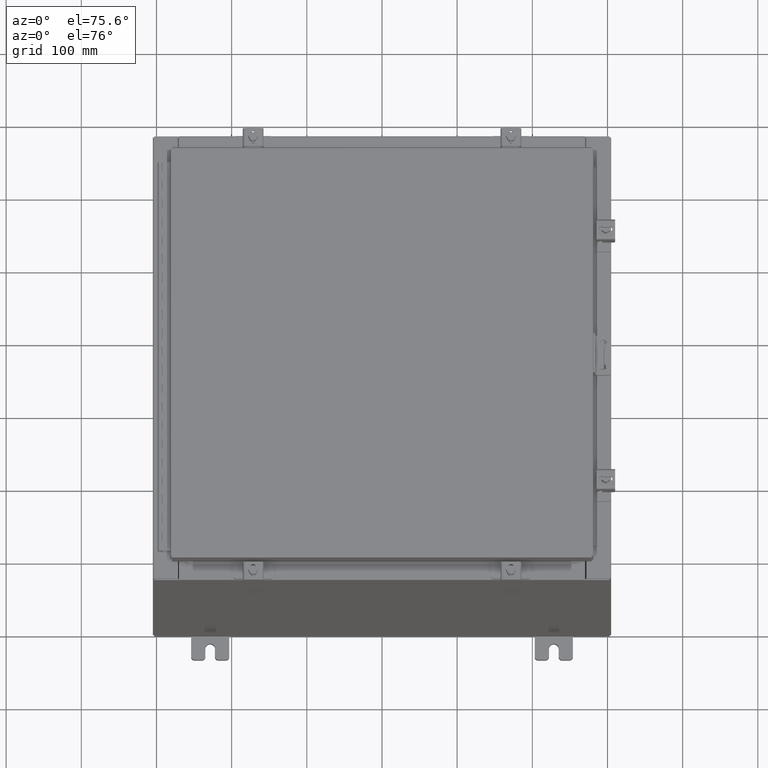
[diagram: clean part render]
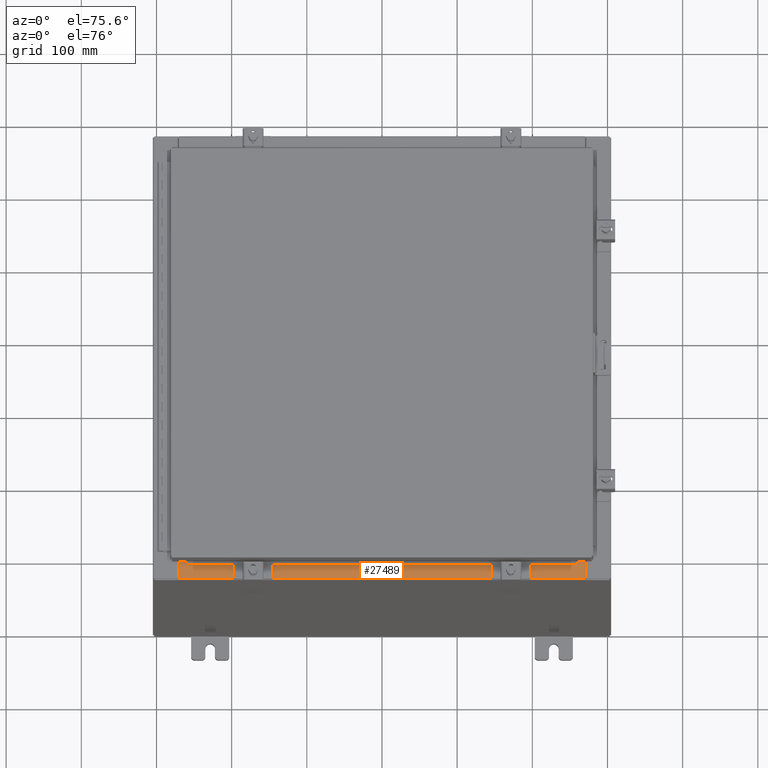
[diagram: same view with one face highlighted and labeled with its STEP entity id]
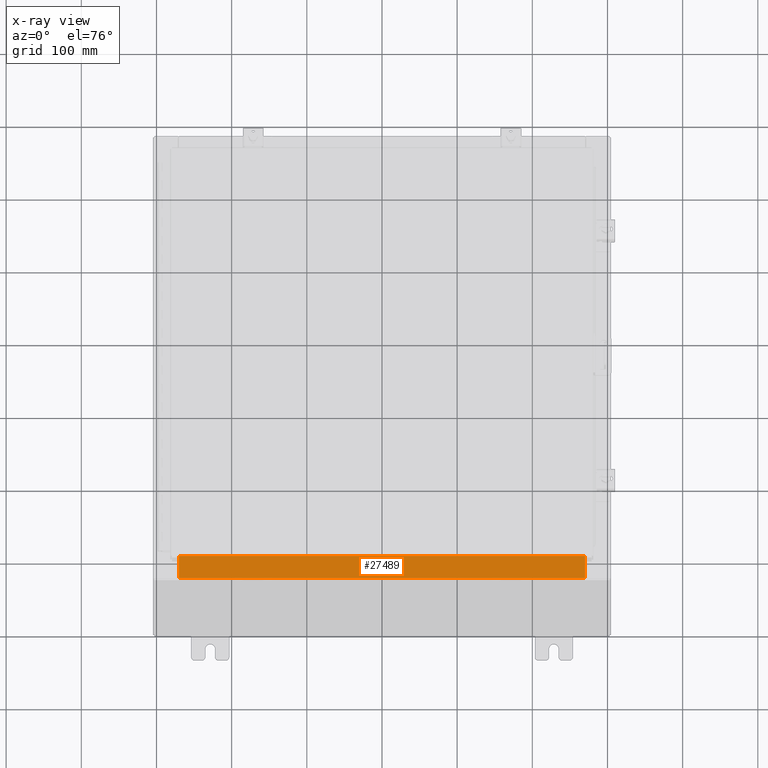
[diagram: x-ray of the same camera — body ghosted, the highlighted face saturated]
A machine part, auxiliary view. The second image highlights one B-rep face of the part: STEP entity #27489.
The next image is the same camera in x-ray: the body ghosted, the highlighted face saturated — about 0% of this face is hidden behind the body in this view.
In plain terms, the highlighted planar face has unit normal (-0, -0, 1).
Its self-contained STEP definition (entity closure, byte-faithful):
#1375 = EDGE_CURVE ( 'NONE', #23888, #24938, #16625, .T. ) ;
#1855 = EDGE_CURVE ( 'NONE', #16730, #31916, #18165, .T. ) ;
#2338 = DIRECTION ( 'NONE',  ( 0.0000000000000000000, -1.000000000000000000, 2.674785894579892700E-015 ) ) ;
#2594 = VECTOR ( 'NONE', #12330, 39.37007874015748100 ) ;
#3121 = CARTESIAN_POINT ( 'NONE',  ( -10.63720000000000200, -1.287299999999998100, 6.000000000000004400 ) ) ;
#7797 = ORIENTED_EDGE ( 'NONE', *, *, #27303, .T. ) ;
#9199 = FACE_OUTER_BOUND ( 'NONE', #17199, .T. ) ;
#10008 = VECTOR ( 'NONE', #12213, 39.37007874015748100 ) ;
#11082 = DIRECTION ( 'NONE',  ( -1.000000000000000000, 0.0000000000000000000, 0.0000000000000000000 ) ) ;
#11547 = VECTOR ( 'NONE', #23116, 39.37007874015748100 ) ;
#12213 = DIRECTION ( 'NONE',  ( -0.0000000000000000000, 1.000000000000000000, -2.674785894579892700E-015 ) ) ;
#12330 = DIRECTION ( 'NONE',  ( -1.000000000000000000, 0.0000000000000000000, 0.0000000000000000000 ) ) ;
#13098 = LINE ( 'NONE', #16013, #25623 ) ;
#14775 = ORIENTED_EDGE ( 'NONE', *, *, #17694, .F. ) ;
#14820 = PLANE ( 'NONE',  #31305 ) ;
#16013 = CARTESIAN_POINT ( 'NONE',  ( -3.422455537835030400E-018, -0.08770000000000026400, 6.000000000000001800 ) ) ;
#16625 = LINE ( 'NONE', #19199, #10008 ) ;
#16730 = VERTEX_POINT ( 'NONE', #22220 ) ;
#17199 = EDGE_LOOP ( 'NONE', ( #30595, #14775, #29979, #7797 ) ) ;
#17296 = DIRECTION ( 'NONE',  ( 0.0000000000000000000, 2.674785894579892700E-015, 1.000000000000000000 ) ) ;
#17694 = EDGE_CURVE ( 'NONE', #31916, #23888, #21768, .T. ) ;
#18165 = LINE ( 'NONE', #22674, #11547 ) ;
#19199 = CARTESIAN_POINT ( 'NONE',  ( -10.63720000000000200, -0.07469999999999973900, 6.000000000000001800 ) ) ;
#21768 = LINE ( 'NONE', #32409, #2594 ) ;
#22220 = CARTESIAN_POINT ( 'NONE',  ( 10.63720000000000400, -0.08770000000000002800, 6.000000000000001800 ) ) ;
#22674 = CARTESIAN_POINT ( 'NONE',  ( 10.63720000000000200, -1.300299999999999800, 6.000000000000006200 ) ) ;
#23045 = CARTESIAN_POINT ( 'NONE',  ( -10.63720000000000200, -0.08770000000000026400, 6.000000000000001800 ) ) ;
#23116 = DIRECTION ( 'NONE',  ( -0.0000000000000000000, -1.000000000000000000, 3.566381192773190000E-015 ) ) ;
#23888 = VERTEX_POINT ( 'NONE', #3121 ) ;
#24938 = VERTEX_POINT ( 'NONE', #23045 ) ;
#25623 = VECTOR ( 'NONE', #11082, 39.37007874015748100 ) ;
#27303 = EDGE_CURVE ( 'NONE', #16730, #24938, #13098, .T. ) ;
#27489 = ADVANCED_FACE ( 'NONE', ( #9199 ), #14820, .T. ) ;
#29979 = ORIENTED_EDGE ( 'NONE', *, *, #1855, .F. ) ;
#30380 = CARTESIAN_POINT ( 'NONE',  ( 10.63720000000000200, -1.287299999999998800, 6.000000000000006200 ) ) ;
#30595 = ORIENTED_EDGE ( 'NONE', *, *, #1375, .F. ) ;
#31305 = AXIS2_PLACEMENT_3D ( 'NONE', #32375, #17296, #2338 ) ;
#31916 = VERTEX_POINT ( 'NONE', #30380 ) ;
#32375 = CARTESIAN_POINT ( 'NONE',  ( -3.422455537835030400E-018, 1.610972251716582100E-014, 6.000000000000001800 ) ) ;
#32409 = CARTESIAN_POINT ( 'NONE',  ( 10.63720000000000400, -1.287299999999998800, 6.000000000000003600 ) ) ;